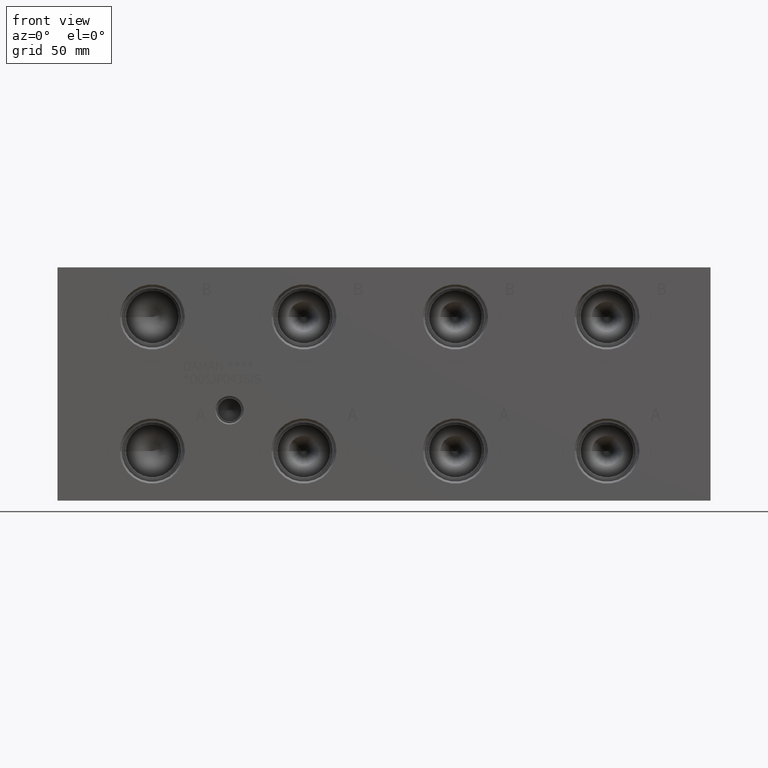
[diagram: clean part render]
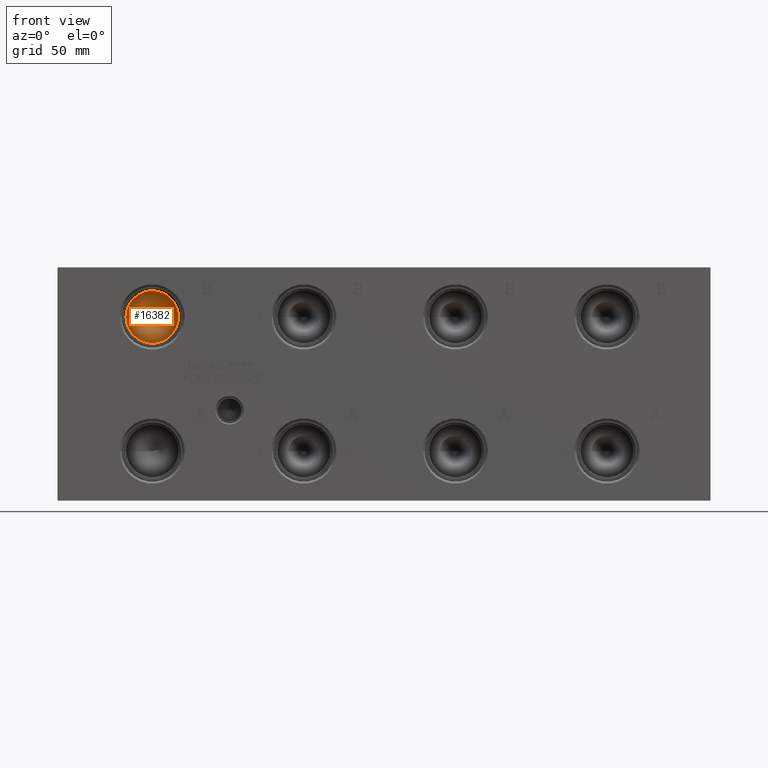
[diagram: same view with one face highlighted and labeled with its STEP entity id]
A machine part, front view. The second image highlights one B-rep face of the part: STEP entity #16382.
In plain terms, the highlighted conical surface has half-angle 60 deg.
Its self-contained STEP definition (entity closure, byte-faithful):
#90=CONICAL_SURFACE('',#17441,7.14375,1.0471975511966);
#819=CIRCLE('',#17442,14.2875);
#820=CIRCLE('',#17443,14.2875);
#2250=FACE_OUTER_BOUND('',#3217,.T.);
#3217=EDGE_LOOP('',(#14090,#14091,#14092,#14093));
#4699=LINE('',#28186,#6110);
#6110=VECTOR('',#20897,7.14375);
#7636=VERTEX_POINT('',#28182);
#7637=VERTEX_POINT('',#28183);
#7638=VERTEX_POINT('',#28185);
#9851=EDGE_CURVE('',#7636,#7637,#819,.T.);
#9852=EDGE_CURVE('',#7637,#7638,#4699,.T.);
#9853=EDGE_CURVE('',#7637,#7636,#820,.T.);
#14090=ORIENTED_EDGE('',*,*,#9851,.T.);
#14091=ORIENTED_EDGE('',*,*,#9852,.T.);
#14092=ORIENTED_EDGE('',*,*,#9852,.F.);
#14093=ORIENTED_EDGE('',*,*,#9853,.T.);
#16382=ADVANCED_FACE('',(#2250),#90,.F.);
#17441=AXIS2_PLACEMENT_3D('',#28181,#20893,#20894);
#17442=AXIS2_PLACEMENT_3D('',#28184,#20895,#20896);
#17443=AXIS2_PLACEMENT_3D('',#28187,#20898,#20899);
#20893=DIRECTION('center_axis',(0.,-1.,0.));
#20894=DIRECTION('ref_axis',(1.,0.,0.));
#20895=DIRECTION('center_axis',(0.,-1.,0.));
#20896=DIRECTION('ref_axis',(1.,0.,0.));
#20897=DIRECTION('',(0.866025403784438,0.5,1.06057523872491E-16));
#20898=DIRECTION('center_axis',(0.,-1.,0.));
#20899=DIRECTION('ref_axis',(1.,0.,0.));
#28181=CARTESIAN_POINT('Origin',(51.5874,36.9666459855234,99.9998));
#28182=CARTESIAN_POINT('',(65.8749,32.8422,99.9998));
#28183=CARTESIAN_POINT('',(37.2999,32.8422,99.9998));
#28184=CARTESIAN_POINT('Origin',(51.5874,32.8422,99.9998));
#28185=CARTESIAN_POINT('',(51.5874,41.0910919710468,99.9998));
#28186=CARTESIAN_POINT('',(44.44365,36.9666459855234,99.9998));
#28187=CARTESIAN_POINT('Origin',(51.5874,32.8422,99.9998));